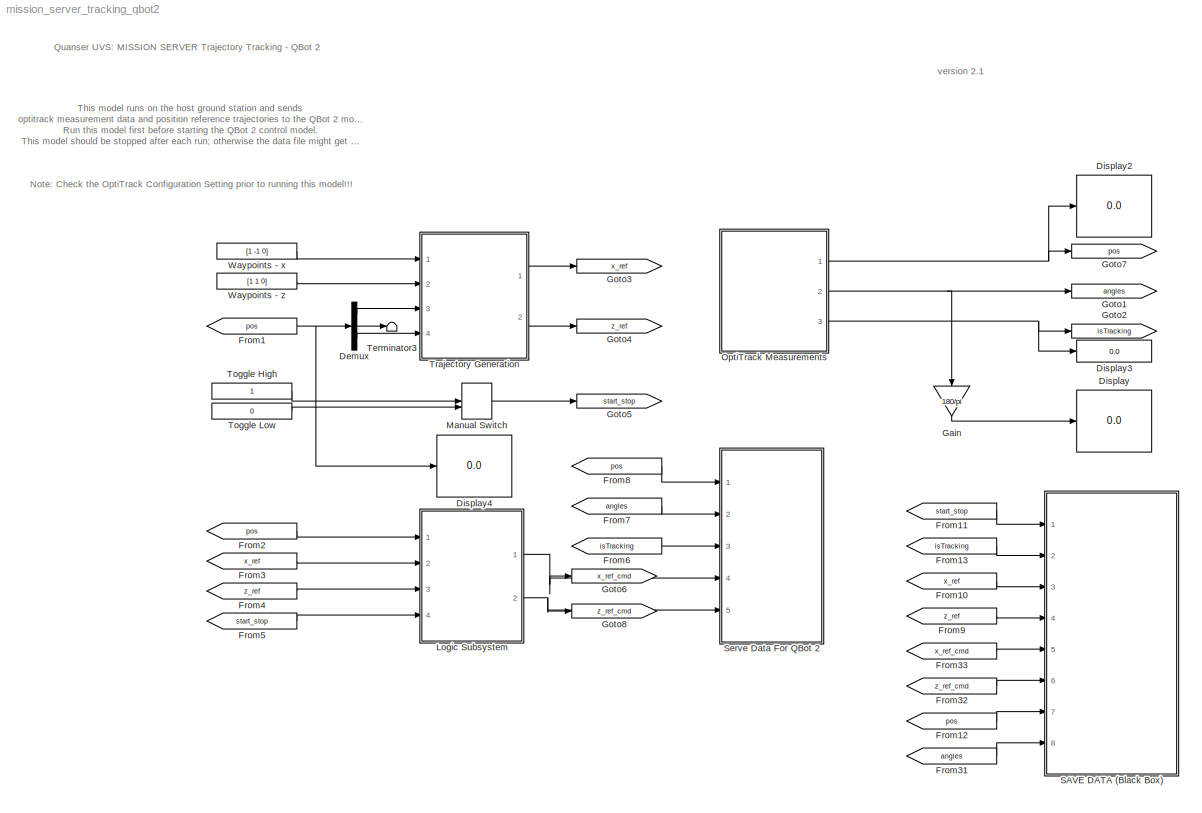
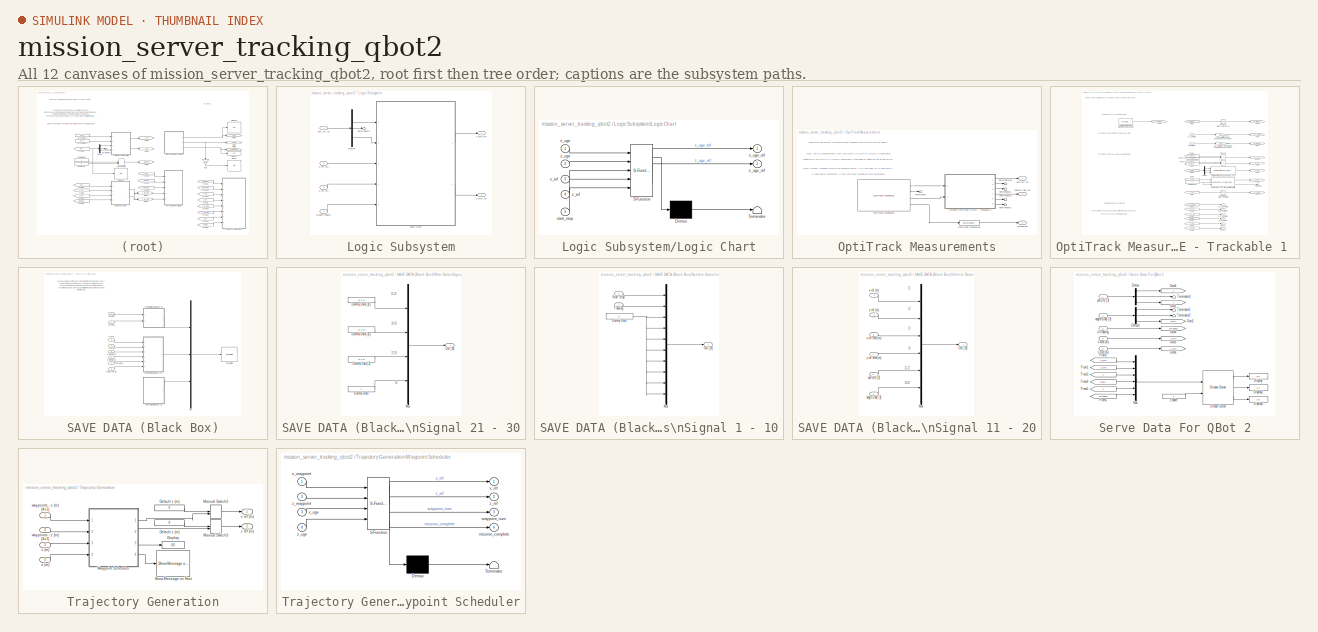
[diagram: thumbnail index - all 12 canvases of the model, root first then tree order]
MODEL mission_server_tracking_qbot2
KIND model
BLOCK [Demux] Demux
  DisplayOption = bar
  Outputs = 3
  Ports = [1, 3]
  SID = 63
BLOCK [Display] Display
  Decimation = 100
  Ports = [1]
  SID = 119
BLOCK [Display] Display2
  Decimation = 100
  Ports = [1]
  SID = 122
BLOCK [Display] Display3
  Decimation = 100
  Ports = [1]
  SID = 124
BLOCK [Display] Display4
  Decimation = 100
  Ports = [1]
  SID = 131
BLOCK [From] From1
  GotoTag = pos
  SID = 62
BLOCK [From] From10
  GotoTag = x_ref
  SID = 187
BLOCK [From] From11
  GotoTag = start_stop
  SID = 191
BLOCK [From] From12
  GotoTag = pos
  SID = 192
BLOCK [From] From13
  GotoTag = isTracking
  SID = 193
BLOCK [From] From2
  GotoTag = pos
  SID = 77
BLOCK [From] From3
  GotoTag = x_ref
  SID = 78
BLOCK [From] From31
  GotoTag = angles
  SID = 188
BLOCK [From] From32
  GotoTag = z_ref_cmd
  SID = 189
BLOCK [From] From33
  GotoTag = x_ref_cmd
  SID = 190
BLOCK [From] From4
  GotoTag = z_ref
  SID = 79
BLOCK [From] From5
  GotoTag = start_stop
  SID = 80
BLOCK [From] From6
  GotoTag = isTracking
  SID = 90
BLOCK [From] From7
  GotoTag = angles
  SID = 91
BLOCK [From] From8
  GotoTag = pos
  SID = 92
BLOCK [From] From9
  GotoTag = z_ref
  SID = 186
BLOCK [Gain] Gain
  Gain = 180/pi
  OutDataTypeStr = Inherit: Inherit via internal rule
  ParamDataTypeStr = Inherit: Inherit via internal rule
  SID = 123
  SaturateOnIntegerOverflow = off
BLOCK [Goto] Goto1
  GotoTag = angles
  SID = 46
BLOCK [Goto] Goto2
  GotoTag = isTracking
  SID = 47
BLOCK [Goto] Goto3
  GotoTag = x_ref
  SID = 75
BLOCK [Goto] Goto4
  GotoTag = z_ref
  SID = 76
BLOCK [Goto] Goto5
  GotoTag = start_stop
  SID = 118
BLOCK [Goto] Goto6
  GotoTag = x_ref_cmd
  SID = 238
BLOCK [Goto] Goto7
  GotoTag = pos
  SID = 42
BLOCK [Goto] Goto8
  GotoTag = z_ref_cmd
  SID = 239
BLOCK [SubSystem] Logic Subsystem
  Ports = [4, 2]
  RequestExecContextInheritance = off
  SID = 65
BLOCK [Demux] Logic Subsystem/Demux
  DisplayOption = bar
  Outputs = 3
  Ports = [1, 3]
  SID = 69
BLOCK [Inport] Logic Subsystem/Enable Toggle
  IconDisplay = Port number
  Port = 4
  SID = 73
BLOCK [SubSystem] Logic Subsystem/Logic Chart
  ErrorFcn = Stateflow.Translate.translate
  PermitHierarchicalResolution = ExplicitOnly
  Ports = [5, 2]
  RequestExecContextInheritance = off
  SFBlockType = Chart
  SID = 68
  TreatAsAtomicUnit = on
BLOCK [Demux] Logic Subsystem/Logic Chart/ Demux 
  Outputs = 1
  Ports = [1, 1]
  SID = 68::242
BLOCK [S-Function] Logic Subsystem/Logic Chart/ SFunction 
  EnableBusSupport = on
  FunctionName = sf_sfun
  PortCounts = [5 3]
  Ports = [5, 3]
  SID = 68::241
  Tag = Stateflow S-Function mission_server_tracking_qbot2 4
BLOCK [Terminator] Logic Subsystem/Logic Chart/ Terminator 
  SID = 68::243
BLOCK [Inport] Logic Subsystem/Logic Chart/start_stop
  IconDisplay = Port number
  Port = 5
  SID = 68::38
BLOCK [Inport] Logic Subsystem/Logic Chart/x_ref
  IconDisplay = Port number
  Port = 3
  SID = 68::31
BLOCK [Inport] Logic Subsystem/Logic Chart/x_ugv
  IconDisplay = Port number
  SID = 68::29
BLOCK [Outport] Logic Subsystem/Logic Chart/x_ugv_ref
  IconDisplay = Port number
  SID = 68::36
BLOCK [Inport] Logic Subsystem/Logic Chart/z_ref
  IconDisplay = Port number
  Port = 4
  SID = 68::32
BLOCK [Inport] Logic Subsystem/Logic Chart/z_ugv
  IconDisplay = Port number
  Port = 2
  SID = 68::30
BLOCK [Outport] Logic Subsystem/Logic Chart/z_ugv_ref
  IconDisplay = Port number
  Port = 2
  SID = 68::37
BLOCK [Terminator] Logic Subsystem/Terminator3
  SID = 70
BLOCK [Inport] Logic Subsystem/pos (m) [3]
  IconDisplay = Port number
  SID = 66
BLOCK [Outport] Logic Subsystem/x cmd (m)
  IconDisplay = Port number
  SID = 67
BLOCK [Inport] Logic Subsystem/x ref (m)
  IconDisplay = Port number
  Port = 2
  SID = 71
BLOCK [Outport] Logic Subsystem/z cmd (m)
  IconDisplay = Port number
  Port = 2
  SID = 74
BLOCK [Inport] Logic Subsystem/z ref (m)
  IconDisplay = Port number
  Port = 3
  SID = 72
BLOCK [ManualSwitch] Manual Switch
  CurrentSetting = 0
  SID = 115
BLOCK [SubSystem] OptiTrack Measurements
  Ports = [0, 3]
  RequestExecContextInheritance = off
  SID = 13
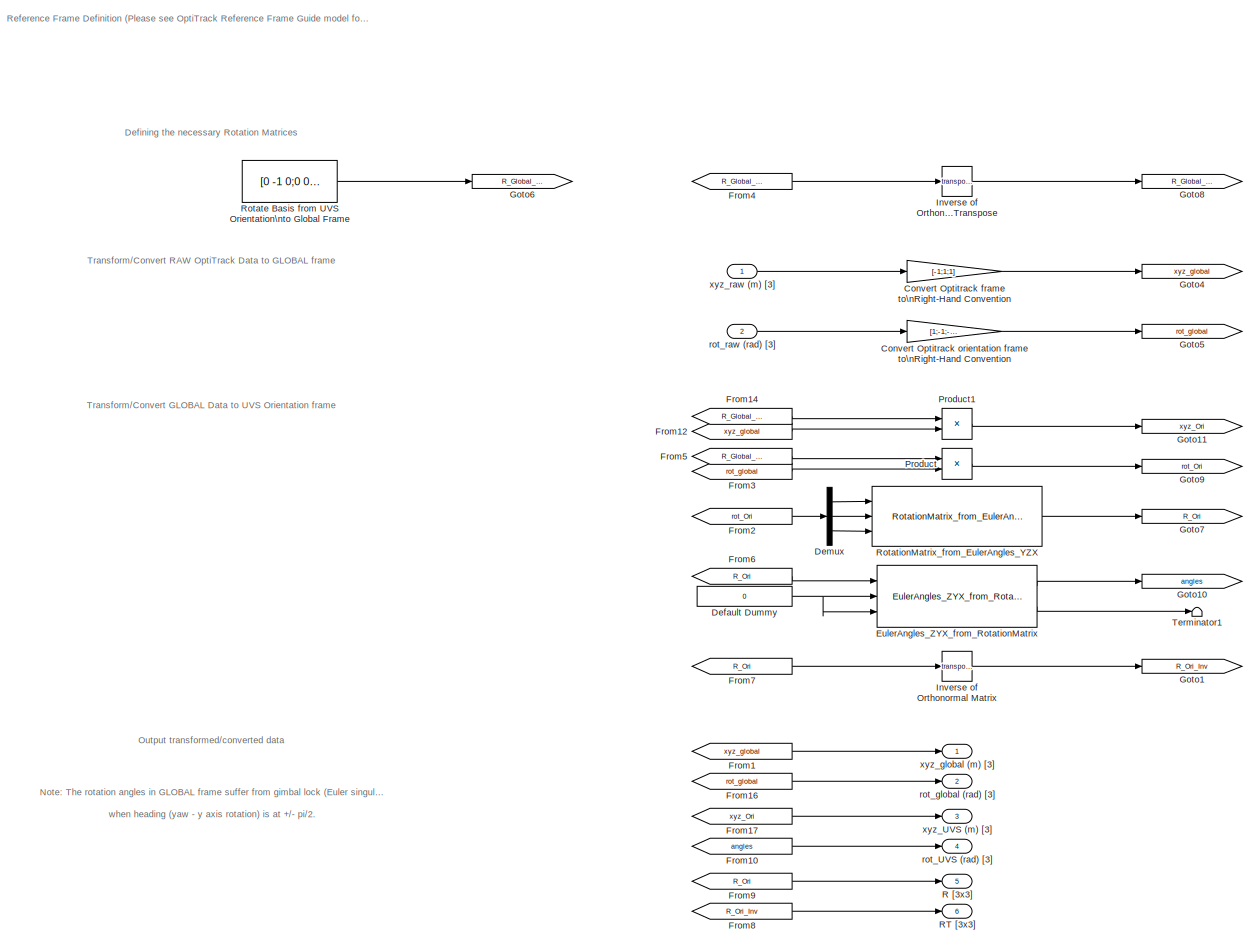
[diagram: OptiTrack Measurements/Compute OptiTrack POSE - Trackable 1  - part 1/1, most of the canvas]
BLOCK [SubSystem] OptiTrack Measurements/Compute OptiTrack POSE - Trackable 1 
  Ports = [2, 6]
  RequestExecContextInheritance = off
  SID = 134
BLOCK [Gain] OptiTrack Measurements/Compute OptiTrack POSE - Trackable 1 /Convert Optitrack frame to\nRight-Hand Convention
  Gain = [-1;1;1]
  OutDataTypeStr = Inherit: Inherit via internal rule
  ParamDataTypeStr = Inherit: Inherit via internal rule
  SID = 137
  SaturateOnIntegerOverflow = off
BLOCK [Gain] OptiTrack Measurements/Compute OptiTrack POSE - Trackable 1 /Convert Optitrack orientation frame to\nRight-Hand Convention
  Gain = [1;-1;-1]
  OutDataTypeStr = Inherit: Inherit via internal rule
  ParamDataTypeStr = Inherit: Inherit via internal rule
  SID = 138
  SaturateOnIntegerOverflow = off
BLOCK [Constant] OptiTrack Measurements/Compute OptiTrack POSE - Trackable 1 /Default Dummy
  SID = 139
  Value = 0
BLOCK [Demux] OptiTrack Measurements/Compute OptiTrack POSE - Trackable 1 /Demux
  DisplayOption = bar
  Outputs = 3
  Ports = [1, 3]
  SID = 140
BLOCK [Reference] OptiTrack Measurements/Compute OptiTrack POSE - Trackable 1 /EulerAngles_ZYX_from_RotationMatrix  REF=Orientation_Library/EulerAngles_ZYX_from_RotationMatrix
  Ports = [3, 2]
  SID = 141
  SourceBlock = Orientation_Library/EulerAngles_ZYX_from_RotationMatrix
  SourceType = SubSystem
BLOCK [From] OptiTrack Measurements/Compute OptiTrack POSE - Trackable 1 /From1
  GotoTag = xyz_global
  SID = 142
BLOCK [From] OptiTrack Measurements/Compute OptiTrack POSE - Trackable 1 /From10
  GotoTag = angles
  SID = 143
BLOCK [From] OptiTrack Measurements/Compute OptiTrack POSE - Trackable 1 /From12
  GotoTag = xyz_global
  SID = 144
BLOCK [From] OptiTrack Measurements/Compute OptiTrack POSE - Trackable 1 /From14
  GotoTag = R_Global_Ori_Inv
  SID = 145
BLOCK [From] OptiTrack Measurements/Compute OptiTrack POSE - Trackable 1 /From16
  GotoTag = rot_global
  SID = 146
BLOCK [From] OptiTrack Measurements/Compute OptiTrack POSE - Trackable 1 /From17
  GotoTag = xyz_Ori
  SID = 147
BLOCK [From] OptiTrack Measurements/Compute OptiTrack POSE - Trackable 1 /From2
  GotoTag = rot_Ori
  SID = 148
BLOCK [From] OptiTrack Measurements/Compute OptiTrack POSE - Trackable 1 /From3
  GotoTag = rot_global
  SID = 149
BLOCK [From] OptiTrack Measurements/Compute OptiTrack POSE - Trackable 1 /From4
  GotoTag = R_Global_Ori
  SID = 150
BLOCK [From] OptiTrack Measurements/Compute OptiTrack POSE - Trackable 1 /From5
  GotoTag = R_Global_Ori_Inv
  SID = 151
BLOCK [From] OptiTrack Measurements/Compute OptiTrack POSE - Trackable 1 /From6
  GotoTag = R_Ori
  SID = 152
BLOCK [From] OptiTrack Measurements/Compute OptiTrack POSE - Trackable 1 /From7
  GotoTag = R_Ori
  SID = 153
BLOCK [From] OptiTrack Measurements/Compute OptiTrack POSE - Trackable 1 /From8
  GotoTag = R_Ori_Inv
  SID = 154
BLOCK [From] OptiTrack Measurements/Compute OptiTrack POSE - Trackable 1 /From9
  GotoTag = R_Ori
  SID = 155
BLOCK [Goto] OptiTrack Measurements/Compute OptiTrack POSE - Trackable 1 /Goto1
  GotoTag = R_Ori_Inv
  SID = 156
BLOCK [Goto] OptiTrack Measurements/Compute OptiTrack POSE - Trackable 1 /Goto10
  GotoTag = angles
  SID = 157
BLOCK [Goto] OptiTrack Measurements/Compute OptiTrack POSE - Trackable 1 /Goto11
  GotoTag = xyz_Ori
  SID = 158
BLOCK [Goto] OptiTrack Measurements/Compute OptiTrack POSE - Trackable 1 /Goto4
  GotoTag = xyz_global
  SID = 159
BLOCK [Goto] OptiTrack Measurements/Compute OptiTrack POSE - Trackable 1 /Goto5
  GotoTag = rot_global
  SID = 160
BLOCK [Goto] OptiTrack Measurements/Compute OptiTrack POSE - Trackable 1 /Goto6
  GotoTag = R_Global_Ori
  SID = 161
BLOCK [Goto] OptiTrack Measurements/Compute OptiTrack POSE - Trackable 1 /Goto7
  GotoTag = R_Ori
  SID = 162
BLOCK [Goto] OptiTrack Measurements/Compute OptiTrack POSE - Trackable 1 /Goto8
  GotoTag = R_Global_Ori_Inv
  SID = 163
BLOCK [Goto] OptiTrack Measurements/Compute OptiTrack POSE - Trackable 1 /Goto9
  GotoTag = rot_Ori
  SID = 164
BLOCK [Math] OptiTrack Measurements/Compute OptiTrack POSE - Trackable 1 /Inverse of Orthonormal Matrix
  Operator = transpose
  Ports = [1, 1]
  SID = 165
BLOCK [Math] OptiTrack Measurements/Compute OptiTrack POSE - Trackable 1 /Inverse of Orthonormal Matrix\nis its Transpose
  Operator = transpose
  Ports = [1, 1]
  SID = 166
BLOCK [Product] OptiTrack Measurements/Compute OptiTrack POSE - Trackable 1 /Product
  InputSameDT = off
  Multiplication = Matrix(*)
  OutDataTypeStr = Inherit: Inherit via internal rule
  Ports = [2, 1]
  RndMeth = Floor
  SID = 167
  SaturateOnIntegerOverflow = off
BLOCK [Product] OptiTrack Measurements/Compute OptiTrack POSE - Trackable 1 /Product1
  InputSameDT = off
  Multiplication = Matrix(*)
  OutDataTypeStr = Inherit: Inherit via internal rule
  Ports = [2, 1]
  RndMeth = Floor
  SID = 168
  SaturateOnIntegerOverflow = off
BLOCK [Outport] OptiTrack Measurements/Compute OptiTrack POSE - Trackable 1 /R [3x3]
  IconDisplay = Port number
  Port = 5
  SID = 176
BLOCK [Outport] OptiTrack Measurements/Compute OptiTrack POSE - Trackable 1 /RT [3x3]
  IconDisplay = Port number
  Port = 6
  SID = 177
BLOCK [Constant] OptiTrack Measurements/Compute OptiTrack POSE - Trackable 1 /Rotate Basis from UVS Orientation\nto Global Frame
  SID = 169
  Value = [0 -1 0;0 0 1;-1 0 0]
BLOCK [Reference] OptiTrack Measurements/Compute OptiTrack POSE - Trackable 1 /RotationMatrix_from_EulerAngles_YZX  REF=Orientation_Library/RotationMatrix_from_EulerAngles_YZX
  Ports = [3, 1]
  SID = 170
  SourceBlock = Orientation_Library/RotationMatrix_from_EulerAngles_YZX
  SourceType = SubSystem
BLOCK [Terminator] OptiTrack Measurements/Compute OptiTrack POSE - Trackable 1 /Terminator1
  SID = 171
BLOCK [Outport] OptiTrack Measurements/Compute OptiTrack POSE - Trackable 1 /rot_UVS (rad) [3]
  IconDisplay = Port number
  Port = 4
  SID = 175
BLOCK [Outport] OptiTrack Measurements/Compute OptiTrack POSE - Trackable 1 /rot_global (rad) [3]
  IconDisplay = Port number
  Port = 2
  SID = 173
BLOCK [Inport] OptiTrack Measurements/Compute OptiTrack POSE - Trackable 1 /rot_raw (rad) [3]
  IconDisplay = Port number
  Port = 2
  SID = 136
BLOCK [Outport] OptiTrack Measurements/Compute OptiTrack POSE - Trackable 1 /xyz_UVS (m) [3]
  IconDisplay = Port number
  Port = 3
  SID = 174
BLOCK [Outport] OptiTrack Measurements/Compute OptiTrack POSE - Trackable 1 /xyz_global (m) [3]
  IconDisplay = Port number
  SID = 172
BLOCK [Inport] OptiTrack Measurements/Compute OptiTrack POSE - Trackable 1 /xyz_raw (m) [3]
  IconDisplay = Port number
  SID = 135
BLOCK [DataTypeConversion] OptiTrack Measurements/Data Type Conversion
  RndMeth = Floor
  SID = 29
  SaturateOnIntegerOverflow = off
BLOCK [Reference] OptiTrack Measurements/OptiTrack Trackables  REF=quarc_library/Devices/Third-Party/NaturalPoint/OptiTrack/OptiTrack Trackables
  Ports = [0, 4]
  SID = 17
  SourceBlock = quarc_library/Devices/Third-Party/NaturalPoint/OptiTrack/OptiTrack Trackables
  SourceType = OptiTrack Rigid Body Position
  calibration_file = <userpath><path> mm) 2017-05-16 6.48pm.cal
  rigid_body_file = <userpath><path>
  rigid_body_ids = [2]
  sample_time = qc_get_step_size
BLOCK [Terminator] OptiTrack Measurements/Terminator
  SID = 24
BLOCK [Terminator] OptiTrack Measurements/Terminator1
  SID = 41
BLOCK [Terminator] OptiTrack Measurements/Terminator12
  SID = 37
BLOCK [Terminator] OptiTrack Measurements/Terminator2
  SID = 184
BLOCK [Terminator] OptiTrack Measurements/Terminator3
  SID = 185
BLOCK [Outport] OptiTrack Measurements/angles (rad) [3]
  IconDisplay = Port number
  Port = 2
  SID = 39
BLOCK [Outport] OptiTrack Measurements/isTracking
  IconDisplay = Port number
  Port = 3
  SID = 30
BLOCK [Outport] OptiTrack Measurements/pos (m) [3]
  IconDisplay = Port number
  SID = 15
BLOCK [SubSystem] SAVE DATA (Black Box)
  Ports = [8]
  RequestExecContextInheritance = off
  SID = 194
BLOCK [Mux] SAVE DATA (Black Box)/Mux
  DisplayOption = bar
  Inputs = 3
  Ports = [3, 1]
  SID = 203
BLOCK [SubSystem] SAVE DATA (Black Box)/Other Data\nSignal 21 - 30
  Ports = [0, 1]
  RequestExecContextInheritance = off
  SID = 204
BLOCK [Constant] SAVE DATA (Black Box)/Other Data\nSignal 21 - 30/Dummy Data
  SID = 205
  Value = 0
BLOCK [Constant] SAVE DATA (Black Box)/Other Data\nSignal 21 - 30/Dummy Data [3]
  SID = 206
  Value = [0 0 0]
BLOCK [Constant] SAVE DATA (Black Box)/Other Data\nSignal 21 - 30/Dummy Data [3]1
  SID = 207
  Value = [0 0 0]
BLOCK [Constant] SAVE DATA (Black Box)/Other Data\nSignal 21 - 30/Dummy Data [3]2
  SID = 208
  Value = [0 0 0]
BLOCK [Mux] SAVE DATA (Black Box)/Other Data\nSignal 21 - 30/Mux
  DisplayOption = bar
  Inputs = [3 3 3 1]
  Ports = [4, 1]
  SID = 209
BLOCK [Outport] SAVE DATA (Black Box)/Other Data\nSignal 21 - 30/Out [10]
  IconDisplay = Port number
  SID = 210
BLOCK [Inport] SAVE DATA (Black Box)/Start Stop
  IconDisplay = Port number
  SID = 195
BLOCK [SubSystem] SAVE DATA (Black Box)/System Status\nSignal 1 - 10
  Ports = [2, 1]
  RequestExecContextInheritance = off
  SID = 215
BLOCK [Constant] SAVE DATA (Black Box)/System Status\nSignal 1 - 10/Dummy Data
  SID = 218
  Value = 0
BLOCK [Mux] SAVE DATA (Black Box)/System Status\nSignal 1 - 10/Mux
  DisplayOption = bar
  Inputs = 10
  Ports = [10, 1]
  SID = 219
BLOCK [Outport] SAVE DATA (Black Box)/System Status\nSignal 1 - 10/Out [10]
  IconDisplay = Port number
  SID = 220
BLOCK [Inport] SAVE DATA (Black Box)/System Status\nSignal 1 - 10/Start Stop
  IconDisplay = Port number
  SID = 216
BLOCK [Inport] SAVE DATA (Black Box)/System Status\nSignal 1 - 10/Tracking
  IconDisplay = Port number
  Port = 2
  SID = 217
BLOCK [Reference] SAVE DATA (Black Box)/To Host File  REF=quarc_library/Sinks/To Host/To Host File
  AttributesFormatString = %<final_file_name>
  Ports = [1]
  SID = 221
  SourceBlock = quarc_library/Sinks/To Host/To Host File
  SourceType = To Host File
  append = off
  decimation = 1
  file_format = MAT-file v.4
  file_name = mission_data_%{date}_%{time}.mat
  final_file_name = mission_data_26-May-2017_16-32-09.mat
  options = No header or footer
  sample_time = -1
  variable_name = mission_data
BLOCK [SubSystem] SAVE DATA (Black Box)/Vehicle Data\nSignal 11 - 20
  Ports = [6, 1]
  RequestExecContextInheritance = off
  SID = 222
BLOCK [Mux] SAVE DATA (Black Box)/Vehicle Data\nSignal 11 - 20/Mux
  DisplayOption = bar
  Inputs = [1 1 1 1 3 3]
  Ports = [6, 1]
  SID = 229
BLOCK [Outport] SAVE DATA (Black Box)/Vehicle Data\nSignal 11 - 20/Out [10]
  IconDisplay = Port number
  SID = 230
BLOCK [Inport] SAVE DATA (Black Box)/Vehicle Data\nSignal 11 - 20/angle (rad) [3]
  IconDisplay = Port number
  Port = 6
  SID = 228
BLOCK [Inport] SAVE DATA (Black Box)/Vehicle Data\nSignal 11 - 20/pos (m) [3]
  IconDisplay = Port number
  Port = 5
  SID = 227
BLOCK [Inport] SAVE DATA (Black Box)/Vehicle Data\nSignal 11 - 20/x ref (m)
  IconDisplay = Port number
  SID = 223
BLOCK [Inport] SAVE DATA (Black Box)/Vehicle Data\nSignal 11 - 20/x ref cmd (m)
  IconDisplay = Port number
  Port = 3
  SID = 225
BLOCK [Inport] SAVE DATA (Black Box)/Vehicle Data\nSignal 11 - 20/z ref (m)
  IconDisplay = Port number
  Port = 2
  SID = 224
BLOCK [Inport] SAVE DATA (Black Box)/Vehicle Data\nSignal 11 - 20/z ref cmd (m)
  IconDisplay = Port number
  Port = 4
  SID = 226
BLOCK [Inport] SAVE DATA (Black Box)/angle (rad) [3]
  IconDisplay = Port number
  Port = 8
  SID = 202
BLOCK [Inport] SAVE DATA (Black Box)/pos (m) [3]
  IconDisplay = Port number
  Port = 7
  SID = 201
BLOCK [Inport] SAVE DATA (Black Box)/tracking
  IconDisplay = Port number
  Port = 2
  SID = 196
BLOCK [Inport] SAVE DATA (Black Box)/x ref (m)
  IconDisplay = Port number
  Port = 3
  SID = 197
BLOCK [Inport] SAVE DATA (Black Box)/x ref cmd (m)
  IconDisplay = Port number
  Port = 5
  SID = 199
BLOCK [Inport] SAVE DATA (Black Box)/z ref (m)
  IconDisplay = Port number
  Port = 4
  SID = 198
BLOCK [Inport] SAVE DATA (Black Box)/z ref cmd (m)
  IconDisplay = Port number
  Port = 6
  SID = 200
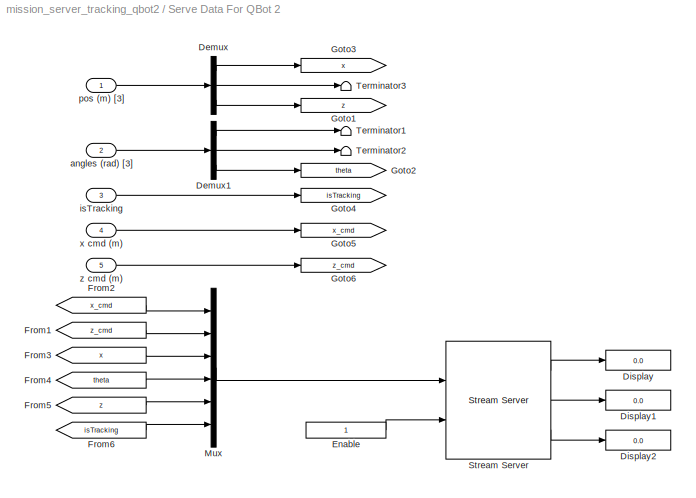
BLOCK [SubSystem] Serve Data For QBot 2
  Ports = [5]
  RequestExecContextInheritance = off
  SID = 82
BLOCK [Demux] Serve Data For QBot 2/Demux
  DisplayOption = bar
  Outputs = 3
  Ports = [1, 3]
  SID = 89
BLOCK [Demux] Serve Data For QBot 2/Demux1
  DisplayOption = bar
  Outputs = 3
  Ports = [1, 3]
  SID = 96
BLOCK [Display] Serve Data For QBot 2/Display
  Decimation = 100
  Ports = [1]
  SID = 112
BLOCK [Display] Serve Data For QBot 2/Display1
  Decimation = 100
  Ports = [1]
  SID = 113
BLOCK [Display] Serve Data For QBot 2/Display2
  Decimation = 100
  Ports = [1]
  SID = 114
BLOCK [Constant] Serve Data For QBot 2/Enable
  SID = 105
BLOCK [From] Serve Data For QBot 2/From1
  GotoTag = z_cmd
  SID = 107
BLOCK [From] Serve Data For QBot 2/From2
  GotoTag = x_cmd
  SID = 104
BLOCK [From] Serve Data For QBot 2/From3
  GotoTag = x
  SID = 108
BLOCK [From] Serve Data For QBot 2/From4
  GotoTag = theta
  SID = 109
BLOCK [From] Serve Data For QBot 2/From5
  GotoTag = z
  SID = 110
BLOCK [From] Serve Data For QBot 2/From6
  GotoTag = isTracking
  SID = 111
BLOCK [Goto] Serve Data For QBot 2/Goto1
  GotoTag = z
  SID = 95
BLOCK [Goto] Serve Data For QBot 2/Goto2
  GotoTag = theta
  SID = 99
BLOCK [Goto] Serve Data For QBot 2/Goto3
  GotoTag = x
  SID = 93
BLOCK [Goto] Serve Data For QBot 2/Goto4
  GotoTag = isTracking
  SID = 100
BLOCK [Goto] Serve Data For QBot 2/Goto5
  GotoTag = x_cmd
  SID = 101
BLOCK [Goto] Serve Data For QBot 2/Goto6
  GotoTag = z_cmd
  SID = 102
BLOCK [Mux] Serve Data For QBot 2/Mux
  DisplayOption = bar
  Inputs = 6
  Ports = [6, 1]
  SID = 106
BLOCK [Reference] Serve Data For QBot 2/Stream Server  REF=quarc_library/Communications/Basic/Stream Server
  AttributesFormatString = \"tcpip://localhost:18006\"
  Ports = [2, 3]
  SID = 103
  SourceBlock = quarc_library/Communications/Basic/Stream Server
  SourceType = Stream Server
  active = off
  apply_uri_to_all_configs = on
  byte_order = little endian (Intel - LSB first)
  data_type = Inherited via back propagation
  default_value = [0]
  implementation = Use non-blocking I/O
  max_dimensions = -1
  optimization = Minimum latency
  receive_buffer_size = 1460
  receive_dimensions = off
  receive_fifo_size = 1000
  receive_options = Do not receive data
  receive_priority = 0
  sample_time = qc_get_step_size
  send_buffer_size = 1460
  send_dimensions = off
  send_fifo_size = 1000
  send_options = Send most recent data
  send_priority = 0
  type_expr = BusObject
  uri = tcpip://localhost:18006
  uri_source = Specify via dialog (do not evaluate)
BLOCK [Terminator] Serve Data For QBot 2/Terminator1
  SID = 97
BLOCK [Terminator] Serve Data For QBot 2/Terminator2
  SID = 98
BLOCK [Terminator] Serve Data For QBot 2/Terminator3
  SID = 94
BLOCK [Inport] Serve Data For QBot 2/angles (rad) [3]
  IconDisplay = Port number
  Port = 2
  SID = 85
BLOCK [Inport] Serve Data For QBot 2/isTracking
  IconDisplay = Port number
  Port = 3
  SID = 88
BLOCK [Inport] Serve Data For QBot 2/pos (m) [3]
  IconDisplay = Port number
  SID = 83
BLOCK [Inport] Serve Data For QBot 2/x cmd (m)
  IconDisplay = Port number
  Port = 4
  SID = 86
BLOCK [Inport] Serve Data For QBot 2/z cmd (m)
  IconDisplay = Port number
  Port = 5
  SID = 87
BLOCK [Terminator] Terminator3
  SID = 64
BLOCK [Constant] Toggle High
  SID = 117
BLOCK [Constant] Toggle Low
  SID = 116
  Value = 0
BLOCK [SubSystem] Trajectory Generation
  Ports = [4, 2]
  RequestExecContextInheritance = off
  SID = 48
BLOCK [Constant] Trajectory Generation/Default x (m)
  SID = 59
  Value = 0
BLOCK [Constant] Trajectory Generation/Default z (m)
  SID = 60
  Value = 0
BLOCK [Display] Trajectory Generation/Display
  Decimation = 100
  Ports = [1]
  SID = 57
BLOCK [ManualSwitch] Trajectory Generation/Manual Switch2
  CurrentSetting = 0
  SID = 55
BLOCK [ManualSwitch] Trajectory Generation/Manual Switch3
  CurrentSetting = 0
  SID = 56
BLOCK [Reference] Trajectory Generation/Show Message on Host  REF=quarc_library/Sinks/Error Handling/Show Message on Host
  AttributesFormatString = \"%<message>\"
  Ports = [1]
  SID = 58
  SourceBlock = quarc_library/Sinks/Error Handling/Show Message on Host
  SourceType = Host Show Message
  message = Final waypoint issued. Please stop all models when vehicle stops.
  message_icon = Information
  message_type = Fixed error message
BLOCK [SubSystem] Trajectory Generation/Waypoint Scheduler
  ErrorFcn = Stateflow.Translate.translate
  PermitHierarchicalResolution = ExplicitOnly
  Ports = [4, 4]
  RequestExecContextInheritance = off
  SFBlockType = MATLAB Function
  SID = 52
  TreatAsAtomicUnit = on
BLOCK [Demux] Trajectory Generation/Waypoint Scheduler/ Demux 
  Outputs = 1
  Ports = [1, 1]
  SID = 52::242
BLOCK [S-Function] Trajectory Generation/Waypoint Scheduler/ SFunction 
  EnableBusSupport = on
  FunctionName = sf_sfun
  PortCounts = [4 5]
  Ports = [4, 5]
  SID = 52::241
  Tag = Stateflow S-Function mission_server_tracking_qbot2 2
BLOCK [Terminator] Trajectory Generation/Waypoint Scheduler/ Terminator 
  SID = 52::243
BLOCK [Outport] Trajectory Generation/Waypoint Scheduler/mission_complete
  IconDisplay = Port number
  Port = 4
  SID = 52::26
BLOCK [Outport] Trajectory Generation/Waypoint Scheduler/waypoint_num
  IconDisplay = Port number
  Port = 3
  SID = 52::25
BLOCK [Outport] Trajectory Generation/Waypoint Scheduler/x_ref
  IconDisplay = Port number
  SID = 52::5
BLOCK [Inport] Trajectory Generation/Waypoint Scheduler/x_ugv
  IconDisplay = Port number
  Port = 3
  SID = 52::21
BLOCK [Inport] Trajectory Generation/Waypoint Scheduler/x_waypoint
  IconDisplay = Port number
  SID = 52::1
BLOCK [Outport] Trajectory Generation/Waypoint Scheduler/z_ref
  IconDisplay = Port number
  Port = 2
  SID = 52::23
BLOCK [Inport] Trajectory Generation/Waypoint Scheduler/z_ugv
  IconDisplay = Port number
  Port = 4
  SID = 52::22
BLOCK [Inport] Trajectory Generation/Waypoint Scheduler/z_waypoint
  IconDisplay = Port number
  Port = 2
  SID = 52::18
BLOCK [Inport] Trajectory Generation/waypoints - x (m) [4x1]
  IconDisplay = Port number
  SID = 129
BLOCK [Inport] Trajectory Generation/waypoints - z (m) [4x1]
  IconDisplay = Port number
  Port = 2
  SID = 130
BLOCK [Inport] Trajectory Generation/x (m)
  IconDisplay = Port number
  Port = 3
  SID = 49
BLOCK [Outport] Trajectory Generation/x ref (m)
  IconDisplay = Port number
  SID = 50
BLOCK [Inport] Trajectory Generation/z (m)
  IconDisplay = Port number
  Port = 4
  SID = 51
BLOCK [Outport] Trajectory Generation/z ref (m)
  IconDisplay = Port number
  Port = 2
  SID = 61
BLOCK [Constant] Waypoints - x
  SID = 127
  Value = [1 -1 0]
BLOCK [Constant] Waypoints - z
  SID = 128
  Value = [1 1 0]
ANNOTATION (root): Note: Check the OptiTrack Configuration Setting prior to running this model!!!
ANNOTATION (root): Quanser UVS: MISSION SERVER Trajectory Tracking - QBot 2
ANNOTATION (root): This model runs on the host ground station and sends\noptitrack measurement data and position reference trajectories to the QBot 2 model.\nRun this model first before starting the QBot 2 control model.\nThis model should be stopped after each run; otherwise the data file might get too large.
ANNOTATION (root): version 2.1
ANNOTATION OptiTrack Measurements: \n \n Note: Default Trackable Definition assumes QBall 2 is rigid body ID #1 and QBot 2 is rigid body ID #2. \n Please adjust accordingly in the OptiTrack Trackables block parameters.
ANNOTATION OptiTrack Measurements: Make sure the correct Calibration and Trackable Definition Files are used!!!
ANNOTATION OptiTrack Measurements: Note: The xyz measurements from OptiTrack is in LEFT HANDED Coordinates.\n\nMapping to the RIGHT HANDED coordinate is achieved by negating the direction on the x-axis measurements.
ANNOTATION OptiTrack Measurements/Compute OptiTrack POSE - Trackable 1 : \n \n Reference Frame Definition (Please see OptiTrack Reference Frame Guide model for details): \n \n RAW: OptiTrack Native Frame (LEFT-HANDED), Y along vertical direction \n GLOBAL: Derived from RAW, corrected to RIGHT-HANDED by negating X of RAW \n UVS Orientation: Z along vertical direction, X-Y form horizontal (ground) plane
ANNOTATION OptiTrack Measurements/Compute OptiTrack POSE - Trackable 1 : \n \n Note: The rotation angles in GLOBAL frame suffer from gimbal lock (Euler singularity) \n when heading (yaw - y axis rotation) is at +/- pi/2. \n It is recommended to use the rotation angles in UVS Orientation frame for flight control.
ANNOTATION OptiTrack Measurements/Compute OptiTrack POSE - Trackable 1 : Defining the necessary Rotation Matrices
ANNOTATION OptiTrack Measurements/Compute OptiTrack POSE - Trackable 1 : Output transformed/converted data
ANNOTATION OptiTrack Measurements/Compute OptiTrack POSE - Trackable 1 : Transform/Convert GLOBAL Data to UVS Orientation frame
ANNOTATION OptiTrack Measurements/Compute OptiTrack POSE - Trackable 1 : Transform/Convert RAW OptiTrack Data to GLOBAL frame
ANNOTATION SAVE DATA (Black Box): Saves the data to a MAT file on the host PC. Note that the model must be connected\nin external mode and stopped correctly for the MAT file to be saved.\nAppend signals to the end of the mux block to save additional signals.\nEach time the model is run it saves a new file with the date and time appended \nto the file name.\n\nSignals can be read after stopping the model by first loading the MAT fi...<+278ch>
ANNOTATION SAVE DATA (Black Box)/Other Data\nSignal 21 - 30: 21-23
ANNOTATION SAVE DATA (Black Box)/Other Data\nSignal 21 - 30: 24-26
ANNOTATION SAVE DATA (Black Box)/Other Data\nSignal 21 - 30: 27-29
ANNOTATION SAVE DATA (Black Box)/Other Data\nSignal 21 - 30: 30
ANNOTATION SAVE DATA (Black Box)/Vehicle Data\nSignal 11 - 20: 11
ANNOTATION SAVE DATA (Black Box)/Vehicle Data\nSignal 11 - 20: 12
ANNOTATION SAVE DATA (Black Box)/Vehicle Data\nSignal 11 - 20: 13
ANNOTATION SAVE DATA (Black Box)/Vehicle Data\nSignal 11 - 20: 14
ANNOTATION SAVE DATA (Black Box)/Vehicle Data\nSignal 11 - 20: 15-17
ANNOTATION SAVE DATA (Black Box)/Vehicle Data\nSignal 11 - 20: 18-20
LINE Demux:1 -> Trajectory Generation:3
LINE Demux:2 -> Terminator3:1
LINE Demux:3 -> Trajectory Generation:4
LINE From10:1 -> SAVE DATA (Black Box):3
LINE From11:1 -> SAVE DATA (Black Box):1
LINE From12:1 -> SAVE DATA (Black Box):7
LINE From13:1 -> SAVE DATA (Black Box):2
NET From1:1 -> Demux:1, Display4:1
LINE From2:1 -> Logic Subsystem:1
LINE From31:1 -> SAVE DATA (Black Box):8
LINE From32:1 -> SAVE DATA (Black Box):6
LINE From33:1 -> SAVE DATA (Black Box):5
LINE From3:1 -> Logic Subsystem:2
LINE From4:1 -> Logic Subsystem:3
LINE From5:1 -> Logic Subsystem:4
LINE From6:1 -> Serve Data For QBot 2:3
LINE From7:1 -> Serve Data For QBot 2:2
LINE From8:1 -> Serve Data For QBot 2:1
LINE From9:1 -> SAVE DATA (Black Box):4
LINE Gain:1 -> Display:1
LINE Logic Subsystem/Demux:1 -> Logic Subsystem/Logic Chart:1
LINE Logic Subsystem/Demux:2 -> Logic Subsystem/Terminator3:1
LINE Logic Subsystem/Demux:3 -> Logic Subsystem/Logic Chart:2
LINE Logic Subsystem/Enable Toggle:1 -> Logic Subsystem/Logic Chart:5
LINE Logic Subsystem/Logic Chart/ Demux :1 -> Logic Subsystem/Logic Chart/ Terminator :1
LINE Logic Subsystem/Logic Chart/ SFunction :1 -> Logic Subsystem/Logic Chart/ Demux :1
LINE Logic Subsystem/Logic Chart/ SFunction :2 -> Logic Subsystem/Logic Chart/x_ugv_ref:1
LINE Logic Subsystem/Logic Chart/ SFunction :3 -> Logic Subsystem/Logic Chart/z_ugv_ref:1
LINE Logic Subsystem/Logic Chart/start_stop:1 -> Logic Subsystem/Logic Chart/ SFunction :5
LINE Logic Subsystem/Logic Chart/x_ref:1 -> Logic Subsystem/Logic Chart/ SFunction :3
LINE Logic Subsystem/Logic Chart/x_ugv:1 -> Logic Subsystem/Logic Chart/ SFunction :1
LINE Logic Subsystem/Logic Chart/z_ref:1 -> Logic Subsystem/Logic Chart/ SFunction :4
LINE Logic Subsystem/Logic Chart/z_ugv:1 -> Logic Subsystem/Logic Chart/ SFunction :2
LINE Logic Subsystem/Logic Chart:1 -> Logic Subsystem/x cmd (m):1
LINE Logic Subsystem/Logic Chart:2 -> Logic Subsystem/z cmd (m):1
LINE Logic Subsystem/pos (m) [3]:1 -> Logic Subsystem/Demux:1
LINE Logic Subsystem/x ref (m):1 -> Logic Subsystem/Logic Chart:3
LINE Logic Subsystem/z ref (m):1 -> Logic Subsystem/Logic Chart:4
NET Logic Subsystem:1 -> Goto6:1, Serve Data For QBot 2:4
NET Logic Subsystem:2 -> Goto8:1, Serve Data For QBot 2:5
LINE Manual Switch:1 -> Goto5:1
LINE OptiTrack Measurements/Compute OptiTrack POSE - Trackable 1 /Convert Optitrack frame to\nRight-Hand Convention:1 -> OptiTrack Measurements/Compute OptiTrack POSE - Trackable 1 /Goto4:1
LINE OptiTrack Measurements/Compute OptiTrack POSE - Trackable 1 /Convert Optitrack orientation frame to\nRight-Hand Convention:1 -> OptiTrack Measurements/Compute OptiTrack POSE - Trackable 1 /Goto5:1
NET OptiTrack Measurements/Compute OptiTrack POSE - Trackable 1 /Default Dummy:1 -> OptiTrack Measurements/Compute OptiTrack POSE - Trackable 1 /EulerAngles_ZYX_from_RotationMatrix:2, OptiTrack Measurements/Compute OptiTrack POSE - Trackable 1 /EulerAngles_ZYX_from_RotationMatrix:3
LINE OptiTrack Measurements/Compute OptiTrack POSE - Trackable 1 /Demux:1 -> OptiTrack Measurements/Compute OptiTrack POSE - Trackable 1 /RotationMatrix_from_EulerAngles_YZX:1
LINE OptiTrack Measurements/Compute OptiTrack POSE - Trackable 1 /Demux:2 -> OptiTrack Measurements/Compute OptiTrack POSE - Trackable 1 /RotationMatrix_from_EulerAngles_YZX:2
LINE OptiTrack Measurements/Compute OptiTrack POSE - Trackable 1 /Demux:3 -> OptiTrack Measurements/Compute OptiTrack POSE - Trackable 1 /RotationMatrix_from_EulerAngles_YZX:3
LINE OptiTrack Measurements/Compute OptiTrack POSE - Trackable 1 /EulerAngles_ZYX_from_RotationMatrix:1 -> OptiTrack Measurements/Compute OptiTrack POSE - Trackable 1 /Goto10:1
LINE OptiTrack Measurements/Compute OptiTrack POSE - Trackable 1 /EulerAngles_ZYX_from_RotationMatrix:2 -> OptiTrack Measurements/Compute OptiTrack POSE - Trackable 1 /Terminator1:1
LINE OptiTrack Measurements/Compute OptiTrack POSE - Trackable 1 /From10:1 -> OptiTrack Measurements/Compute OptiTrack POSE - Trackable 1 /rot_UVS (rad) [3]:1
LINE OptiTrack Measurements/Compute OptiTrack POSE - Trackable 1 /From12:1 -> OptiTrack Measurements/Compute OptiTrack POSE - Trackable 1 /Product1:2
LINE OptiTrack Measurements/Compute OptiTrack POSE - Trackable 1 /From14:1 -> OptiTrack Measurements/Compute OptiTrack POSE - Trackable 1 /Product1:1
LINE OptiTrack Measurements/Compute OptiTrack POSE - Trackable 1 /From16:1 -> OptiTrack Measurements/Compute OptiTrack POSE - Trackable 1 /rot_global (rad) [3]:1
LINE OptiTrack Measurements/Compute OptiTrack POSE - Trackable 1 /From17:1 -> OptiTrack Measurements/Compute OptiTrack POSE - Trackable 1 /xyz_UVS (m) [3]:1
LINE OptiTrack Measurements/Compute OptiTrack POSE - Trackable 1 /From1:1 -> OptiTrack Measurements/Compute OptiTrack POSE - Trackable 1 /xyz_global (m) [3]:1
LINE OptiTrack Measurements/Compute OptiTrack POSE - Trackable 1 /From2:1 -> OptiTrack Measurements/Compute OptiTrack POSE - Trackable 1 /Demux:1
LINE OptiTrack Measurements/Compute OptiTrack POSE - Trackable 1 /From3:1 -> OptiTrack Measurements/Compute OptiTrack POSE - Trackable 1 /Product:2
LINE OptiTrack Measurements/Compute OptiTrack POSE - Trackable 1 /From4:1 -> OptiTrack Measurements/Compute OptiTrack POSE - Trackable 1 /Inverse of Orthonormal Matrix\nis its Transpose:1
LINE OptiTrack Measurements/Compute OptiTrack POSE - Trackable 1 /From5:1 -> OptiTrack Measurements/Compute OptiTrack POSE - Trackable 1 /Product:1
LINE OptiTrack Measurements/Compute OptiTrack POSE - Trackable 1 /From6:1 -> OptiTrack Measurements/Compute OptiTrack POSE - Trackable 1 /EulerAngles_ZYX_from_RotationMatrix:1
LINE OptiTrack Measurements/Compute OptiTrack POSE - Trackable 1 /From7:1 -> OptiTrack Measurements/Compute OptiTrack POSE - Trackable 1 /Inverse of Orthonormal Matrix:1
LINE OptiTrack Measurements/Compute OptiTrack POSE - Trackable 1 /From8:1 -> OptiTrack Measurements/Compute OptiTrack POSE - Trackable 1 /RT [3x3]:1
LINE OptiTrack Measurements/Compute OptiTrack POSE - Trackable 1 /From9:1 -> OptiTrack Measurements/Compute OptiTrack POSE - Trackable 1 /R [3x3]:1
LINE OptiTrack Measurements/Compute OptiTrack POSE - Trackable 1 /Inverse of Orthonormal Matrix:1 -> OptiTrack Measurements/Compute OptiTrack POSE - Trackable 1 /Goto1:1
LINE OptiTrack Measurements/Compute OptiTrack POSE - Trackable 1 /Inverse of Orthonormal Matrix\nis its Transpose:1 -> OptiTrack Measurements/Compute OptiTrack POSE - Trackable 1 /Goto8:1
LINE OptiTrack Measurements/Compute OptiTrack POSE - Trackable 1 /Product1:1 -> OptiTrack Measurements/Compute OptiTrack POSE - Trackable 1 /Goto11:1
LINE OptiTrack Measurements/Compute OptiTrack POSE - Trackable 1 /Product:1 -> OptiTrack Measurements/Compute OptiTrack POSE - Trackable 1 /Goto9:1
LINE OptiTrack Measurements/Compute OptiTrack POSE - Trackable 1 /Rotate Basis from UVS Orientation\nto Global Frame:1 -> OptiTrack Measurements/Compute OptiTrack POSE - Trackable 1 /Goto6:1
LINE OptiTrack Measurements/Compute OptiTrack POSE - Trackable 1 /RotationMatrix_from_EulerAngles_YZX:1 -> OptiTrack Measurements/Compute OptiTrack POSE - Trackable 1 /Goto7:1
LINE OptiTrack Measurements/Compute OptiTrack POSE - Trackable 1 /rot_raw (rad) [3]:1 -> OptiTrack Measurements/Compute OptiTrack POSE - Trackable 1 /Convert Optitrack orientation frame to\nRight-Hand Convention:1
LINE OptiTrack Measurements/Compute OptiTrack POSE - Trackable 1 /xyz_raw (m) [3]:1 -> OptiTrack Measurements/Compute OptiTrack POSE - Trackable 1 /Convert Optitrack frame to\nRight-Hand Convention:1
LINE OptiTrack Measurements/Compute OptiTrack POSE - Trackable 1 :1 -> OptiTrack Measurements/pos (m) [3]:1
LINE OptiTrack Measurements/Compute OptiTrack POSE - Trackable 1 :2 -> OptiTrack Measurements/Terminator12:1
LINE OptiTrack Measurements/Compute OptiTrack POSE - Trackable 1 :3 -> OptiTrack Measurements/Terminator1:1
LINE OptiTrack Measurements/Compute OptiTrack POSE - Trackable 1 :4 -> OptiTrack Measurements/angles (rad) [3]:1
LINE OptiTrack Measurements/Compute OptiTrack POSE - Trackable 1 :5 -> OptiTrack Measurements/Terminator3:1
LINE OptiTrack Measurements/Compute OptiTrack POSE - Trackable 1 :6 -> OptiTrack Measurements/Terminator2:1
LINE OptiTrack Measurements/Data Type Conversion:1 -> OptiTrack Measurements/isTracking:1
LINE OptiTrack Measurements/OptiTrack Trackables:1 -> OptiTrack Measurements/Compute OptiTrack POSE - Trackable 1 :1
LINE OptiTrack Measurements/OptiTrack Trackables:2 -> OptiTrack Measurements/Terminator:1
LINE OptiTrack Measurements/OptiTrack Trackables:3 -> OptiTrack Measurements/Compute OptiTrack POSE - Trackable 1 :2
LINE OptiTrack Measurements/OptiTrack Trackables:4 -> OptiTrack Measurements/Data Type Conversion:1
NET OptiTrack Measurements:1 -> Display2:1, Goto7:1
NET OptiTrack Measurements:2 -> Gain:1, Goto1:1
NET OptiTrack Measurements:3 -> Display3:1, Goto2:1
LINE SAVE DATA (Black Box)/Mux:1 -> SAVE DATA (Black Box)/To Host File:1
LINE SAVE DATA (Black Box)/Other Data\nSignal 21 - 30/Dummy Data [3]1:1 -> SAVE DATA (Black Box)/Other Data\nSignal 21 - 30/Mux:1
LINE SAVE DATA (Black Box)/Other Data\nSignal 21 - 30/Dummy Data [3]2:1 -> SAVE DATA (Black Box)/Other Data\nSignal 21 - 30/Mux:2
LINE SAVE DATA (Black Box)/Other Data\nSignal 21 - 30/Dummy Data [3]:1 -> SAVE DATA (Black Box)/Other Data\nSignal 21 - 30/Mux:3
LINE SAVE DATA (Black Box)/Other Data\nSignal 21 - 30/Dummy Data:1 -> SAVE DATA (Black Box)/Other Data\nSignal 21 - 30/Mux:4
LINE SAVE DATA (Black Box)/Other Data\nSignal 21 - 30/Mux:1 -> SAVE DATA (Black Box)/Other Data\nSignal 21 - 30/Out [10]:1
LINE SAVE DATA (Black Box)/Other Data\nSignal 21 - 30:1 -> SAVE DATA (Black Box)/Mux:3
LINE SAVE DATA (Black Box)/Start Stop:1 -> SAVE DATA (Black Box)/System Status\nSignal 1 - 10:1
NET SAVE DATA (Black Box)/System Status\nSignal 1 - 10/Dummy Data:1 -> SAVE DATA (Black Box)/System Status\nSignal 1 - 10/Mux:10, SAVE DATA (Black Box)/System Status\nSignal 1 - 10/Mux:3, SAVE DATA (Black Box)/System Status\nSignal 1 - 10/Mux:4, SAVE DATA (Black Box)/System Status\nSignal 1 - 10/Mux:5, SAVE DATA (Black Box)/System Status\nSignal 1 - 10/Mux:6, SAVE DATA (Black Box)/System Status\nSignal 1 - 10/Mux:7, SAVE DATA (Black Box)/System Status\nSignal 1 - 10/Mux:8, SAVE DATA (Black Box)/System Status\nSignal 1 - 10/Mux:9
LINE SAVE DATA (Black Box)/System Status\nSignal 1 - 10/Mux:1 -> SAVE DATA (Black Box)/System Status\nSignal 1 - 10/Out [10]:1
LINE SAVE DATA (Black Box)/System Status\nSignal 1 - 10/Start Stop:1 -> SAVE DATA (Black Box)/System Status\nSignal 1 - 10/Mux:1
LINE SAVE DATA (Black Box)/System Status\nSignal 1 - 10/Tracking:1 -> SAVE DATA (Black Box)/System Status\nSignal 1 - 10/Mux:2
LINE SAVE DATA (Black Box)/System Status\nSignal 1 - 10:1 -> SAVE DATA (Black Box)/Mux:1
LINE SAVE DATA (Black Box)/Vehicle Data\nSignal 11 - 20/Mux:1 -> SAVE DATA (Black Box)/Vehicle Data\nSignal 11 - 20/Out [10]:1
LINE SAVE DATA (Black Box)/Vehicle Data\nSignal 11 - 20/angle (rad) [3]:1 -> SAVE DATA (Black Box)/Vehicle Data\nSignal 11 - 20/Mux:6
LINE SAVE DATA (Black Box)/Vehicle Data\nSignal 11 - 20/pos (m) [3]:1 -> SAVE DATA (Black Box)/Vehicle Data\nSignal 11 - 20/Mux:5
LINE SAVE DATA (Black Box)/Vehicle Data\nSignal 11 - 20/x ref (m):1 -> SAVE DATA (Black Box)/Vehicle Data\nSignal 11 - 20/Mux:1
LINE SAVE DATA (Black Box)/Vehicle Data\nSignal 11 - 20/x ref cmd (m):1 -> SAVE DATA (Black Box)/Vehicle Data\nSignal 11 - 20/Mux:3
LINE SAVE DATA (Black Box)/Vehicle Data\nSignal 11 - 20/z ref (m):1 -> SAVE DATA (Black Box)/Vehicle Data\nSignal 11 - 20/Mux:2
LINE SAVE DATA (Black Box)/Vehicle Data\nSignal 11 - 20/z ref cmd (m):1 -> SAVE DATA (Black Box)/Vehicle Data\nSignal 11 - 20/Mux:4
LINE SAVE DATA (Black Box)/Vehicle Data\nSignal 11 - 20:1 -> SAVE DATA (Black Box)/Mux:2
LINE SAVE DATA (Black Box)/angle (rad) [3]:1 -> SAVE DATA (Black Box)/Vehicle Data\nSignal 11 - 20:6
LINE SAVE DATA (Black Box)/pos (m) [3]:1 -> SAVE DATA (Black Box)/Vehicle Data\nSignal 11 - 20:5
LINE SAVE DATA (Black Box)/tracking:1 -> SAVE DATA (Black Box)/System Status\nSignal 1 - 10:2
LINE SAVE DATA (Black Box)/x ref (m):1 -> SAVE DATA (Black Box)/Vehicle Data\nSignal 11 - 20:1
LINE SAVE DATA (Black Box)/x ref cmd (m):1 -> SAVE DATA (Black Box)/Vehicle Data\nSignal 11 - 20:3
LINE SAVE DATA (Black Box)/z ref (m):1 -> SAVE DATA (Black Box)/Vehicle Data\nSignal 11 - 20:2
LINE SAVE DATA (Black Box)/z ref cmd (m):1 -> SAVE DATA (Black Box)/Vehicle Data\nSignal 11 - 20:4
LINE Serve Data For QBot 2/Demux1:1 -> Serve Data For QBot 2/Terminator1:1
LINE Serve Data For QBot 2/Demux1:2 -> Serve Data For QBot 2/Terminator2:1
LINE Serve Data For QBot 2/Demux1:3 -> Serve Data For QBot 2/Goto2:1
LINE Serve Data For QBot 2/Demux:1 -> Serve Data For QBot 2/Goto3:1
LINE Serve Data For QBot 2/Demux:2 -> Serve Data For QBot 2/Terminator3:1
LINE Serve Data For QBot 2/Demux:3 -> Serve Data For QBot 2/Goto1:1
LINE Serve Data For QBot 2/Enable:1 -> Serve Data For QBot 2/Stream Server:2
LINE Serve Data For QBot 2/From1:1 -> Serve Data For QBot 2/Mux:2
LINE Serve Data For QBot 2/From2:1 -> Serve Data For QBot 2/Mux:1
LINE Serve Data For QBot 2/From3:1 -> Serve Data For QBot 2/Mux:3
LINE Serve Data For QBot 2/From4:1 -> Serve Data For QBot 2/Mux:4
LINE Serve Data For QBot 2/From5:1 -> Serve Data For QBot 2/Mux:5
LINE Serve Data For QBot 2/From6:1 -> Serve Data For QBot 2/Mux:6
LINE Serve Data For QBot 2/Mux:1 -> Serve Data For QBot 2/Stream Server:1
LINE Serve Data For QBot 2/Stream Server:1 -> Serve Data For QBot 2/Display:1
LINE Serve Data For QBot 2/Stream Server:2 -> Serve Data For QBot 2/Display1:1
LINE Serve Data For QBot 2/Stream Server:3 -> Serve Data For QBot 2/Display2:1
LINE Serve Data For QBot 2/angles (rad) [3]:1 -> Serve Data For QBot 2/Demux1:1
LINE Serve Data For QBot 2/isTracking:1 -> Serve Data For QBot 2/Goto4:1
LINE Serve Data For QBot 2/pos (m) [3]:1 -> Serve Data For QBot 2/Demux:1
LINE Serve Data For QBot 2/x cmd (m):1 -> Serve Data For QBot 2/Goto5:1
LINE Serve Data For QBot 2/z cmd (m):1 -> Serve Data For QBot 2/Goto6:1
LINE Toggle High:1 -> Manual Switch:1
LINE Toggle Low:1 -> Manual Switch:2
LINE Trajectory Generation/Default x (m):1 -> Trajectory Generation/Manual Switch2:1
LINE Trajectory Generation/Default z (m):1 -> Trajectory Generation/Manual Switch3:1
LINE Trajectory Generation/Manual Switch2:1 -> Trajectory Generation/x ref (m):1
LINE Trajectory Generation/Manual Switch3:1 -> Trajectory Generation/z ref (m):1
LINE Trajectory Generation/Waypoint Scheduler/ Demux :1 -> Trajectory Generation/Waypoint Scheduler/ Terminator :1
LINE Trajectory Generation/Waypoint Scheduler/ SFunction :1 -> Trajectory Generation/Waypoint Scheduler/ Demux :1
LINE Trajectory Generation/Waypoint Scheduler/ SFunction :2 -> Trajectory Generation/Waypoint Scheduler/x_ref:1
LINE Trajectory Generation/Waypoint Scheduler/ SFunction :3 -> Trajectory Generation/Waypoint Scheduler/z_ref:1
LINE Trajectory Generation/Waypoint Scheduler/ SFunction :4 -> Trajectory Generation/Waypoint Scheduler/waypoint_num:1
LINE Trajectory Generation/Waypoint Scheduler/ SFunction :5 -> Trajectory Generation/Waypoint Scheduler/mission_complete:1
LINE Trajectory Generation/Waypoint Scheduler/x_ugv:1 -> Trajectory Generation/Waypoint Scheduler/ SFunction :3
LINE Trajectory Generation/Waypoint Scheduler/x_waypoint:1 -> Trajectory Generation/Waypoint Scheduler/ SFunction :1
LINE Trajectory Generation/Waypoint Scheduler/z_ugv:1 -> Trajectory Generation/Waypoint Scheduler/ SFunction :4
LINE Trajectory Generation/Waypoint Scheduler/z_waypoint:1 -> Trajectory Generation/Waypoint Scheduler/ SFunction :2
LINE Trajectory Generation/Waypoint Scheduler:1 -> Trajectory Generation/Manual Switch2:2
LINE Trajectory Generation/Waypoint Scheduler:2 -> Trajectory Generation/Manual Switch3:2
LINE Trajectory Generation/Waypoint Scheduler:3 -> Trajectory Generation/Display:1
LINE Trajectory Generation/Waypoint Scheduler:4 -> Trajectory Generation/Show Message on Host:1
LINE Trajectory Generation/waypoints - x (m) [4x1]:1 -> Trajectory Generation/Waypoint Scheduler:1
LINE Trajectory Generation/waypoints - z (m) [4x1]:1 -> Trajectory Generation/Waypoint Scheduler:2
LINE Trajectory Generation/x (m):1 -> Trajectory Generation/Waypoint Scheduler:3
LINE Trajectory Generation/z (m):1 -> Trajectory Generation/Waypoint Scheduler:4
LINE Trajectory Generation:1 -> Goto3:1
LINE Trajectory Generation:2 -> Goto4:1
LINE Waypoints - x:1 -> Trajectory Generation:1
LINE Waypoints - z:1 -> Trajectory Generation:2
note: NET lines group one-source signal fan-out (src -> all destinations, sorted); 1:1 wires keep LINE
CHART Trajectory Generation/Waypoint Scheduler states=1 transitions=1
  STATE_LABEL 'eML_blk_kernel()'
CHART Logic Subsystem/Logic Chart states=2 transitions=3
  STATE_LABEL 'WaitForStartCommand\\ndu:\\nx_ugv_ref = x_ugv\\nz_ugv_ref = z_ugv'
  STATE_LABEL 'QbotGetsWaypoints\\ndu:\\nx_ugv_ref = x_ref\\nz_ugv_ref = z_ref'
note: 2 file-system paths scrubbed to <path> (not preserved elsewhere — flat text is the only slx artifact)
